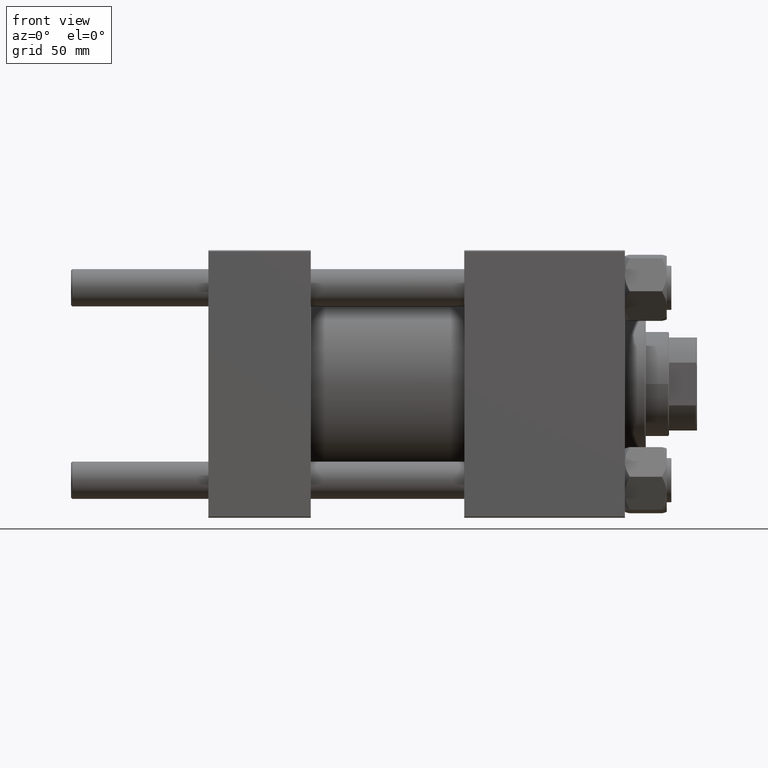
[diagram: clean part render]
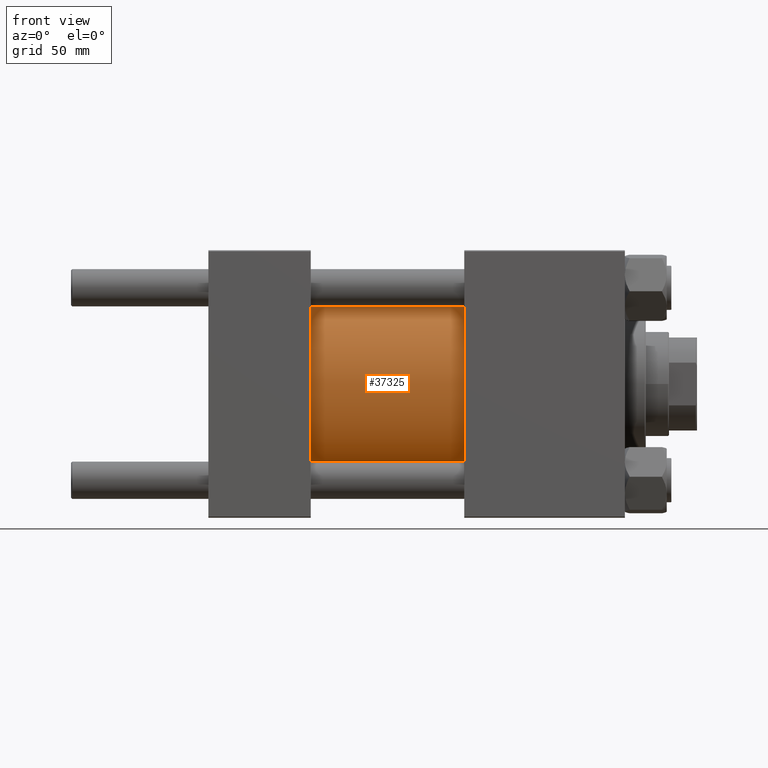
[diagram: same view with one face highlighted and labeled with its STEP entity id]
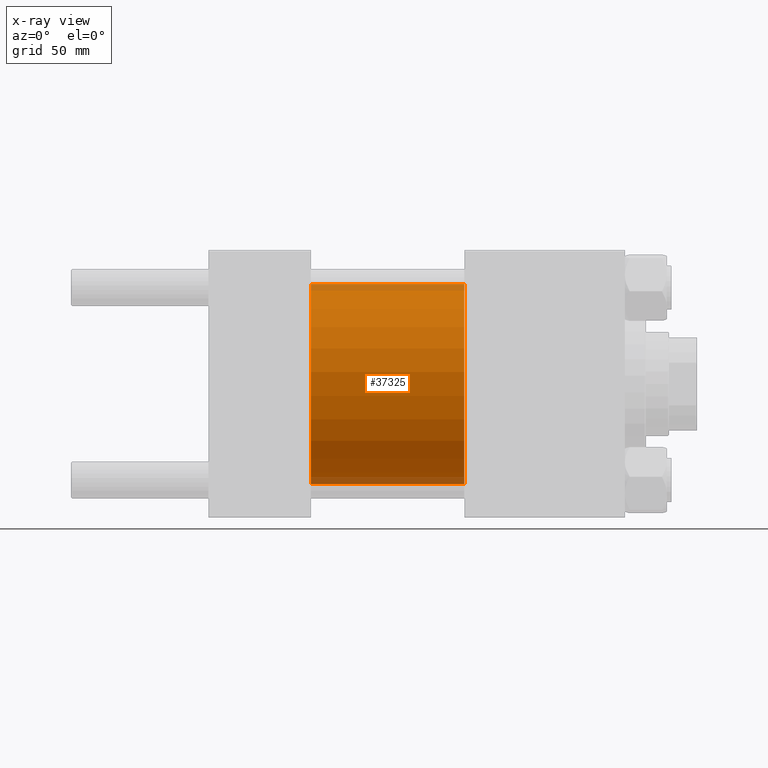
[diagram: x-ray of the same camera — body ghosted, the highlighted face saturated]
A machine part, front view. The second image highlights one B-rep face of the part: STEP entity #37325.
The next image is the same camera in x-ray: the body ghosted, the highlighted face saturated — about 7% of this face is hidden behind the body in this view.
In plain terms, the highlighted cylindrical surface (partial cylindrical patch) has radius 43 mm, axis along (-1, -0, -0).
Its self-contained STEP definition (entity closure, byte-faithful):
#702 = FACE_OUTER_BOUND ( 'NONE', #16610, .T. ) ;
#1751 = VECTOR ( 'NONE', #3439, 1000.000000000000000 ) ;
#3439 = DIRECTION ( 'NONE',  ( -1.000000000000000000, -0.000000000000000000, -0.000000000000000000 ) ) ;
#4250 = ORIENTED_EDGE ( 'NONE', *, *, #46466, .T. ) ;
#7584 = DIRECTION ( 'NONE',  ( -1.000000000000000000, -0.000000000000000000, -0.000000000000000000 ) ) ;
#8083 = DIRECTION ( 'NONE',  ( 0.000000000000000000, 0.000000000000000000, 1.000000000000000000 ) ) ;
#8564 = CARTESIAN_POINT ( 'NONE',  ( 110.0000000000000000, 5.265981236333618470E-15, -43.00000000000000000 ) ) ;
#9587 = ORIENTED_EDGE ( 'NONE', *, *, #24508, .T. ) ;
#11854 = CARTESIAN_POINT ( 'NONE',  ( 110.0000000000000000, 0.000000000000000000, 0.000000000000000000 ) ) ;
#13405 = AXIS2_PLACEMENT_3D ( 'NONE', #11854, #46235, #50313 ) ;
#13676 = CARTESIAN_POINT ( 'NONE',  ( 44.00000000000000000, 5.265981236333618470E-15, -43.00000000000000000 ) ) ;
#14410 = LINE ( 'NONE', #49789, #1751 ) ;
#14486 = ORIENTED_EDGE ( 'NONE', *, *, #32364, .F. ) ;
#16249 = CARTESIAN_POINT ( 'NONE',  ( 110.0000000000000000, 0.000000000000000000, 0.000000000000000000 ) ) ;
#16610 = EDGE_LOOP ( 'NONE', ( #14486, #19481, #9587, #4250 ) ) ;
#19481 = ORIENTED_EDGE ( 'NONE', *, *, #22688, .F. ) ;
#20010 = AXIS2_PLACEMENT_3D ( 'NONE', #44290, #33322, #49621 ) ;
#22688 = EDGE_CURVE ( 'NONE', #49804, #26924, #33746, .T. ) ;
#23123 = CYLINDRICAL_SURFACE ( 'NONE', #32023, 43.00000000000000000 ) ;
#23298 = VERTEX_POINT ( 'NONE', #38721 ) ;
#24508 = EDGE_CURVE ( 'NONE', #49804, #23298, #48576, .T. ) ;
#26490 = VECTOR ( 'NONE', #33274, 1000.000000000000000 ) ;
#26744 = CARTESIAN_POINT ( 'NONE',  ( 110.0000000000000000, 0.000000000000000000, 43.00000000000000000 ) ) ;
#26924 = VERTEX_POINT ( 'NONE', #8564 ) ;
#32023 = AXIS2_PLACEMENT_3D ( 'NONE', #16249, #7584, #8083 ) ;
#32364 = EDGE_CURVE ( 'NONE', #26924, #37638, #14410, .T. ) ;
#33274 = DIRECTION ( 'NONE',  ( -1.000000000000000000, -0.000000000000000000, -0.000000000000000000 ) ) ;
#33322 = DIRECTION ( 'NONE',  ( 1.000000000000000000, -0.000000000000000000, 0.000000000000000000 ) ) ;
#33746 = CIRCLE ( 'NONE', #13405, 43.00000000000000000 ) ;
#37325 = ADVANCED_FACE ( 'NONE', ( #702 ), #23123, .T. ) ;
#37638 = VERTEX_POINT ( 'NONE', #13676 ) ;
#38721 = CARTESIAN_POINT ( 'NONE',  ( 44.00000000000000000, 0.000000000000000000, 43.00000000000000000 ) ) ;
#43989 = CARTESIAN_POINT ( 'NONE',  ( 110.0000000000000000, 0.000000000000000000, 43.00000000000000000 ) ) ;
#44290 = CARTESIAN_POINT ( 'NONE',  ( 44.00000000000000000, 0.000000000000000000, 0.000000000000000000 ) ) ;
#44414 = CIRCLE ( 'NONE', #20010, 43.00000000000000000 ) ;
#46235 = DIRECTION ( 'NONE',  ( 1.000000000000000000, 0.000000000000000000, 0.000000000000000000 ) ) ;
#46466 = EDGE_CURVE ( 'NONE', #23298, #37638, #44414, .T. ) ;
#48576 = LINE ( 'NONE', #43989, #26490 ) ;
#49621 = DIRECTION ( 'NONE',  ( 0.000000000000000000, 0.000000000000000000, 1.000000000000000000 ) ) ;
#49789 = CARTESIAN_POINT ( 'NONE',  ( 110.0000000000000000, 5.265981236333618470E-15, -43.00000000000000000 ) ) ;
#49804 = VERTEX_POINT ( 'NONE', #26744 ) ;
#50313 = DIRECTION ( 'NONE',  ( 0.000000000000000000, 0.000000000000000000, -1.000000000000000000 ) ) ;